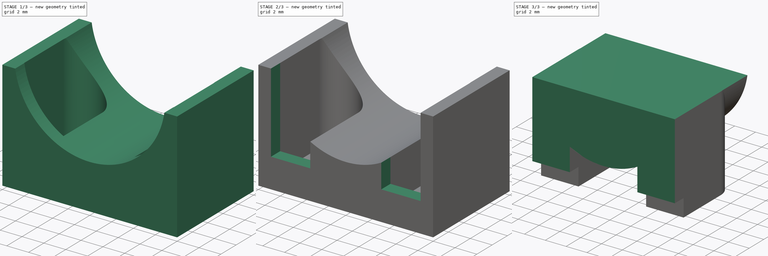
[diagram: build sequence overview — one tinted view per stage of 3, left to right]
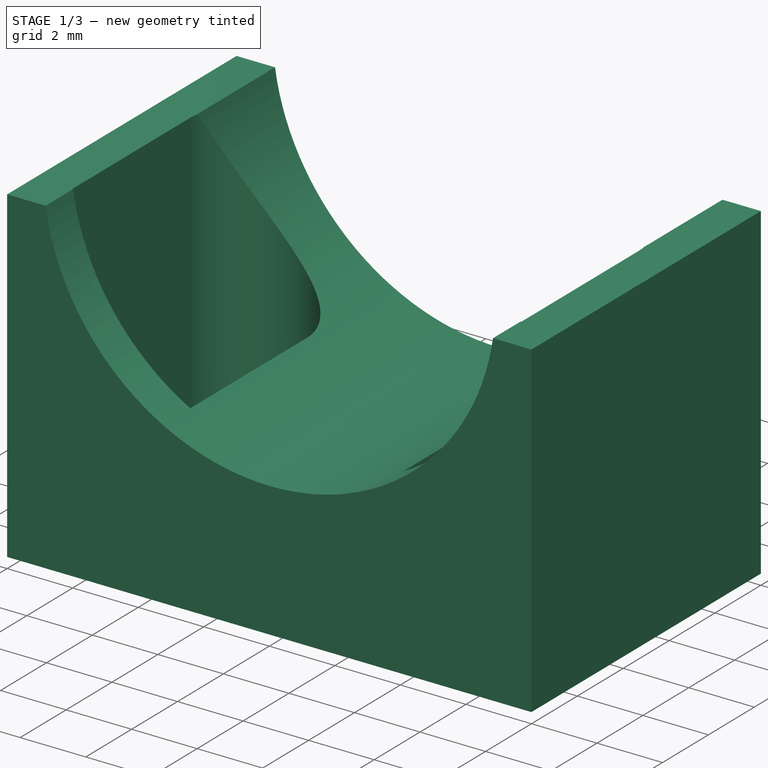
[diagram: stage 1 of 3 — iso view after this stage's code; geometry added in this stage tinted green]
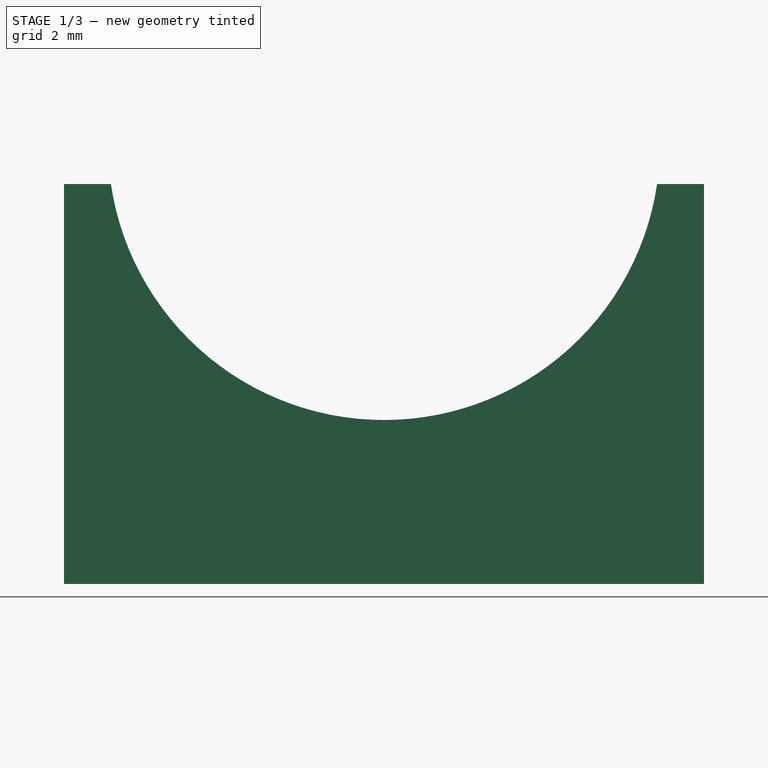
[diagram: stage 1 of 3 — front view after this stage's code; geometry added in this stage tinted green]
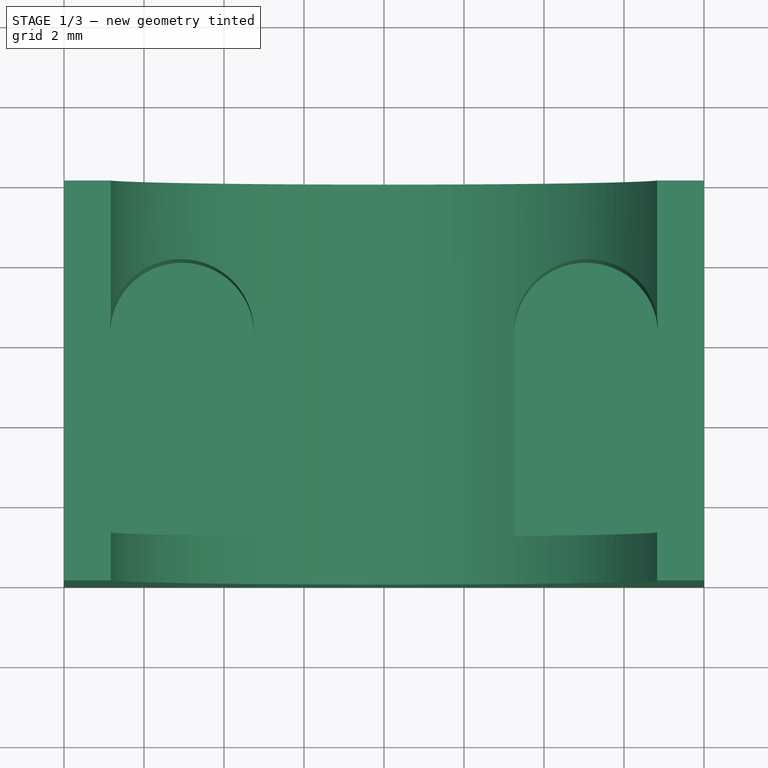
[diagram: stage 1 of 3 — top view after this stage's code; geometry added in this stage tinted green]
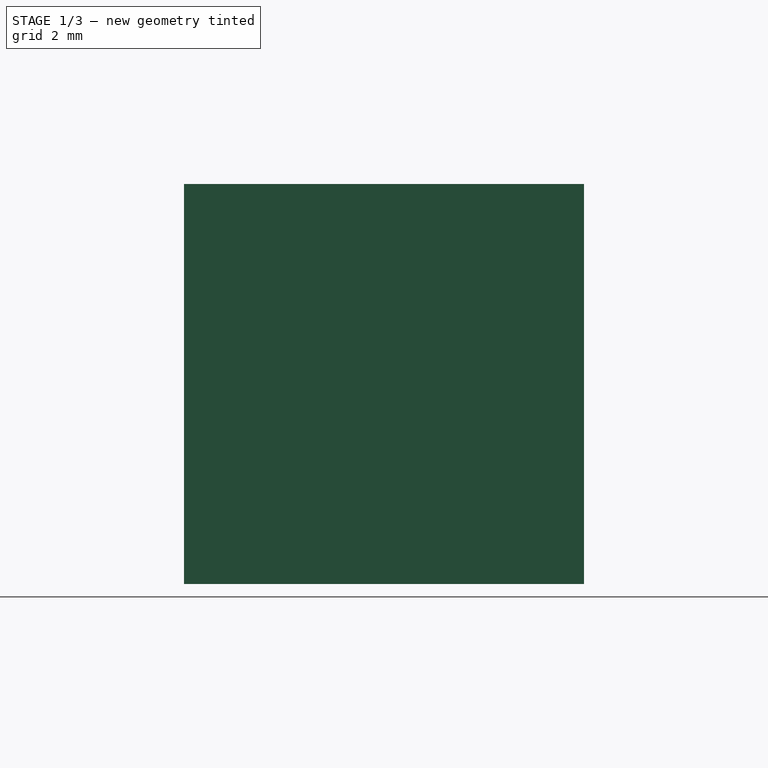
[diagram: stage 1 of 3 — right view after this stage's code; geometry added in this stage tinted green]
FCSTD DOCUMENT  (FreeCAD 0.19R23756 (Git))
Label: Schienenauflage_invertiert
License: All rights reserved
LicenseURL: http://en.wikipedia.org/wiki/All_rights_reserved
objects: Sketcher::SketchObject×4, PartDesign::Pad×2, PartDesign::Pocket×2, PartDesign::Body×2, Spreadsheet::Sheet×1, PartDesign::ShapeBinder×1, PartDesign::Boolean×1
note: 16 computed .brp shape members not serialized (recipe doc carries the construction recipe); baked Part::Feature solids carry a one-line shape summary decoded from their .brp

FEATURE [Sketcher::SketchObject] Sketch
  FullyConstrained = true
  MapMode = 5
  Placement = pos=(0,0,0) rot=(1,0,0;1.5708rad)
  Support = -> [XZ_Plane]
  expr: Constraints[15] = Spreadsheet.rt
  expr: Constraints[12] = Spreadsheet.rd
  sketch-geometry (7):
    g0: ArcOfCircle CenterX=0 CenterY=1 CenterZ=0 NormalX=0 NormalY=0 NormalZ=1 AngleXU=0 Radius=6.9 StartAngle=3.28703 EndAngle=6.13775
    g1: LineSegment StartX=-6.82715 StartY=-1e-16 StartZ=0 EndX=-8 EndY=-1e-16 EndZ=0
    g2: LineSegment StartX=-8 StartY=-1e-16 StartZ=0 EndX=-8 EndY=-10 EndZ=0
    g3: LineSegment StartX=-8 StartY=-10 StartZ=0 EndX=8 EndY=-10 EndZ=0
    g4: LineSegment StartX=8 StartY=-10 StartZ=0 EndX=8 EndY=0 EndZ=0
    g5: LineSegment StartX=8 StartY=0 StartZ=0 EndX=6.82715 EndY=0 EndZ=0
    g6: GeomPoint X=0 Y=-5.9 Z=0
  constraints (20):
    c: PointOnObject(g0,g-2)
    c: Coincident(g0,g1)
    c: Horizontal(g1)
    c: Coincident(g1,g2)
    c: Vertical(g2)
    c: Coincident(g2,g3)
    c: Horizontal(g3)
    c: Coincident(g3,g4)
    c: Vertical(g4)
    c: Coincident(g4,g5)
    c: Coincident(g5,g0)
    c: Horizontal(g5)
    c: Diameter(g0) = 13.8
    c: PointOnObject(g6,g0)
    c: PointOnObject(g6,g-2)
    c: DistanceY(g6,g0) = 5.9
    c: Symmetric(g1,g4,g-2)
    c: DistanceY(g3,g4) = 10
    c: DistanceX(g1,g4) = 16
    c: PointOnObject(g4,g-1)
FEATURE [Spreadsheet::Sheet] Spreadsheet
  cells = A1=Kugeldurchmesser; B1(d)=12.8; A2=Rinnendurchmesser; B2(rd)=13.8; A3=Rinnentiefe; B3(rt)=5.9
FEATURE [PartDesign::Pad] Pad
  Direction = (1,1,1)
  Length = 10
  Length2 = 100
  Placement = pos=(0,0,0) rot=(1,0,0;1.5708rad)
  Profile = -> Sketch
  Type = 0
FEATURE [Sketcher::SketchObject] Sketch007
  ExternalGeometry = -> [Pad]
  FullyConstrained = true
  MapMode = 5
  sketch-geometry (9):
    g0: LineSegment StartX=-6.85 StartY=-3.7 StartZ=0 EndX=-6.85 EndY=-8.8 EndZ=0
    g1: LineSegment StartX=-6.85 StartY=-8.8 StartZ=0 EndX=-3.25 EndY=-8.8 EndZ=0
    g2: LineSegment StartX=-3.25 StartY=-8.8 StartZ=0 EndX=-3.25 EndY=-3.7 EndZ=0
    g3: ArcOfCircle CenterX=-5.05 CenterY=-3.7 CenterZ=0 NormalX=0 NormalY=0 NormalZ=1 AngleXU=0 Radius=1.8 StartAngle=0 EndAngle=3.14159
    g4: LineSegment StartX=3.25 StartY=-3.7 StartZ=0 EndX=3.25 EndY=-8.8 EndZ=0
    g5: LineSegment StartX=3.25 StartY=-8.8 StartZ=0 EndX=6.85 EndY=-8.8 EndZ=0
    g6: LineSegment StartX=6.85 StartY=-8.8 StartZ=0 EndX=6.85 EndY=-3.7 EndZ=0
    g7: ArcOfCircle CenterX=5.05 CenterY=-3.7 CenterZ=0 NormalX=0 NormalY=0 NormalZ=1 AngleXU=0 Radius=1.8 StartAngle=5.09e-14 EndAngle=3.14159
    g8: GeomPoint X=5.05 Y=-1.9 Z=0
  constraints (23):
    c: Vertical(g0)
    c: Coincident(g0,g1)
    c: Horizontal(g1)
    c: Coincident(g1,g2)
    c: Vertical(g2)
    c: Tangent(g2,g3) = -1.5708
    c: Tangent(g3,g0) = -1.5708
    c: Vertical(g4)
    c: Coincident(g4,g5)
    c: Horizontal(g5)
    c: Coincident(g5,g6)
    c: Vertical(g6)
    c: Tangent(g6,g7) = -1.5708
    c: Tangent(g7,g4) = -1.5708
    c: Horizontal(g1,g4)
    c: Equal(g3,g7)
    c: DistanceX(g0,g5) = 13.7
    c: DistanceX(g1,g4) = 6.5
    c: PointOnObject(g8,g7)
    c: Vertical(g8,g7)
    c: DistanceY(g5,g8) = 6.9
    c: Symmetric(g7,g3,g-2)
    c: DistanceY(g-3,g5) = 1.2
FEATURE [PartDesign::Pocket] Pocket
  BaseFeature = -> Pad
  Length = 9
  Length2 = 100
  Placement = pos=(0,0,0) rot=(1,0,0;1.5708rad)
  Profile = -> Sketch007
  Type = 0
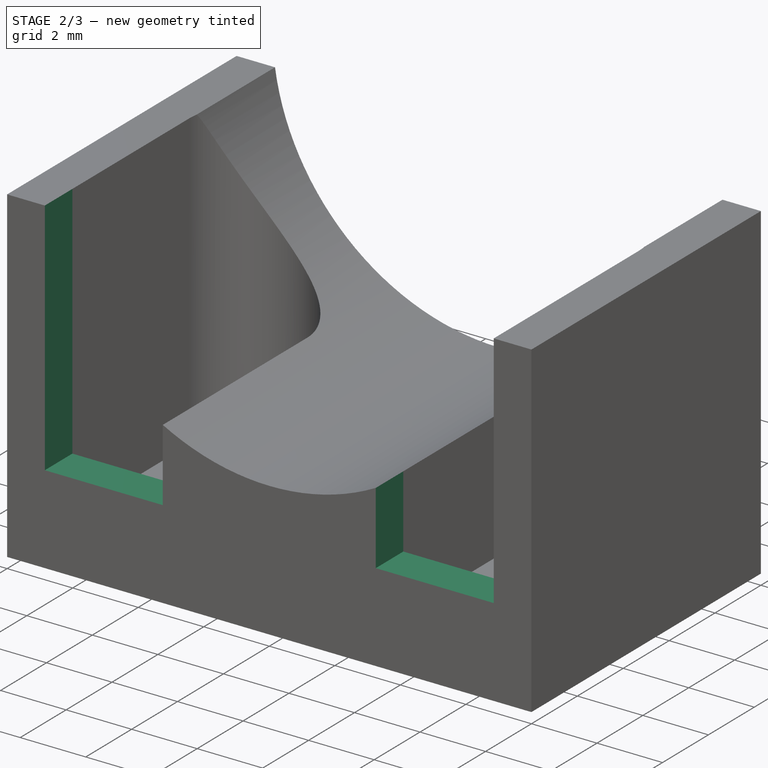
[diagram: stage 2 of 3 — iso view after this stage's code; geometry added in this stage tinted green]
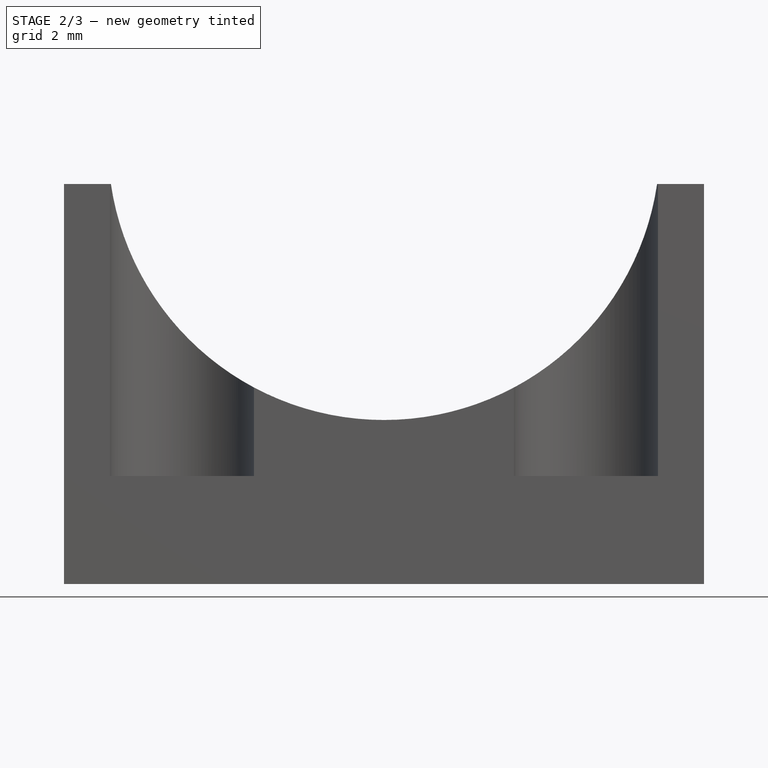
[diagram: stage 2 of 3 — front view after this stage's code; geometry added in this stage tinted green]
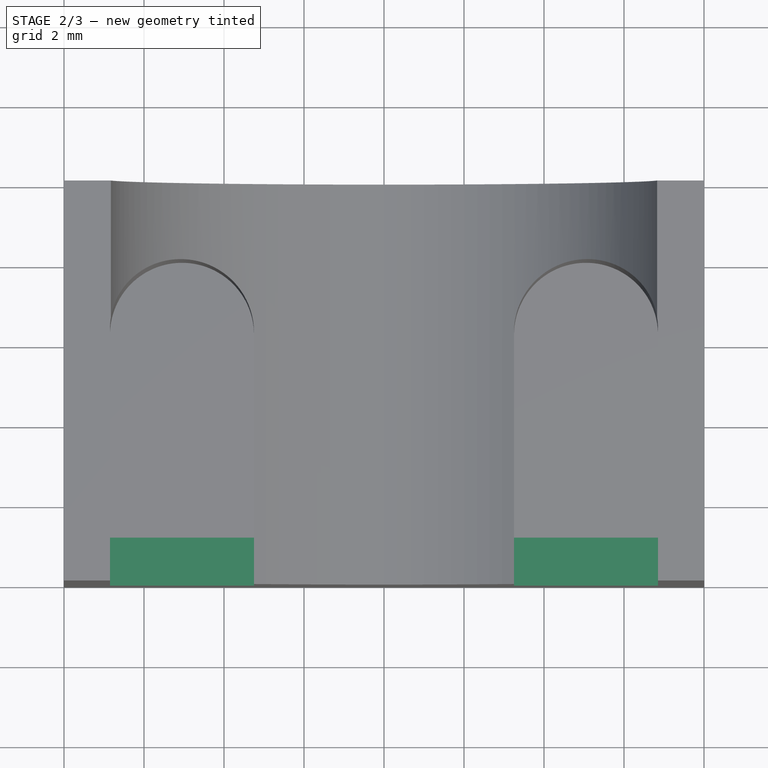
[diagram: stage 2 of 3 — top view after this stage's code; geometry added in this stage tinted green]
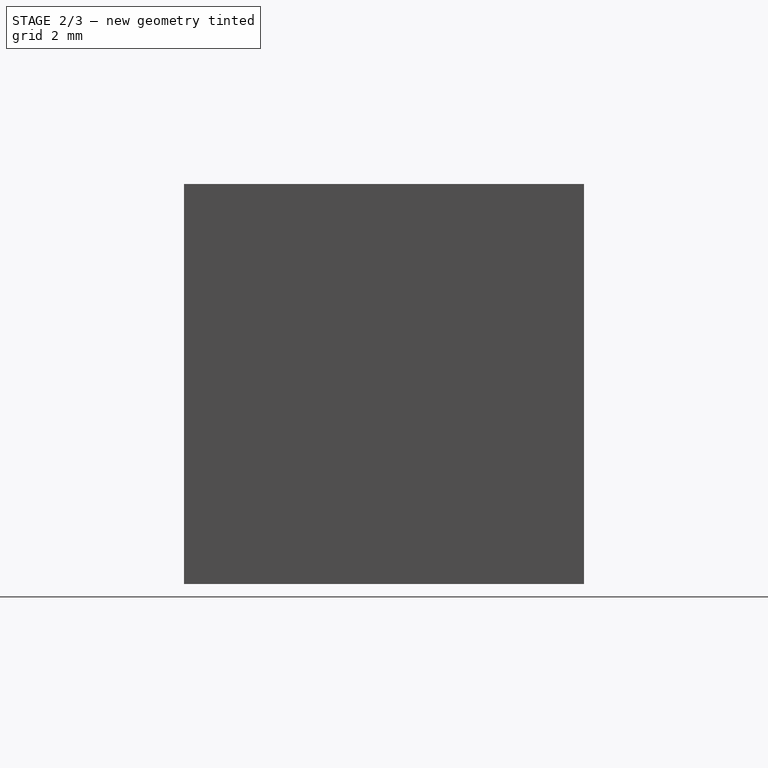
[diagram: stage 2 of 3 — right view after this stage's code; geometry added in this stage tinted green]
FEATURE [Sketcher::SketchObject] Sketch008
  ExternalGeometry = -> [Pocket]
  FullyConstrained = true
  MapMode = 5
  Placement = pos=(0,-10,0) rot=(1,0,0;1.5708rad)
  Support = -> [Pocket]
  sketch-geometry (8):
    g0: LineSegment StartX=-6.85 StartY=-4.2e-15 StartZ=0 EndX=-6.85 EndY=-7.3 EndZ=0
    g1: LineSegment StartX=-6.85 StartY=-7.3 StartZ=0 EndX=-3.25 EndY=-7.3 EndZ=0
    g2: LineSegment StartX=-3.25 StartY=-7.3 StartZ=0 EndX=-3.25 EndY=-2 EndZ=0
    g3: LineSegment StartX=-3.25 StartY=-2 StartZ=0 EndX=3.25 EndY=-2 EndZ=0
    g4: LineSegment StartX=3.25 StartY=-2 StartZ=0 EndX=3.25 EndY=-7.3 EndZ=0
    g5: LineSegment StartX=3.25 StartY=-7.3 StartZ=0 EndX=6.85 EndY=-7.3 EndZ=0
    g6: LineSegment StartX=6.85 StartY=-7.3 StartZ=0 EndX=6.85 EndY=-4.4e-15 EndZ=0
    g7: LineSegment StartX=6.85 StartY=-4.4e-15 StartZ=0 EndX=-6.85 EndY=-4.2e-15 EndZ=0
  constraints (21):
    c: Coincident(g0,g-3)
    c: Vertical(g0)
    c: Coincident(g0,g1)
    c: Horizontal(g1)
    c: Coincident(g1,g2)
    c: Vertical(g2)
    c: Coincident(g2,g3)
    c: Horizontal(g3)
    c: Coincident(g3,g4)
    c: Vertical(g4)
    c: Coincident(g4,g5)
    c: Coincident(g5,g6)
    c: Coincident(g6,g-4)
    c: Coincident(g6,g7)
    c: Coincident(g7,g0)
    c: Vertical(g6)
    c: Horizontal(g5)
    c: Symmetric(g4,g1,g-2)
    c: PointOnObject(g4,g-5)
    c: DistanceY(g5,g6) = 7.3
    c: DistanceY(g3,g6) = 2
FEATURE [PartDesign::Pocket] Pocket001
  BaseFeature = -> Pocket
  Length = 1.2
  Length2 = 100
  Placement = pos=(0,0,0) rot=(1,0,0;1.5708rad)
  Profile = -> Sketch008
  Type = 0
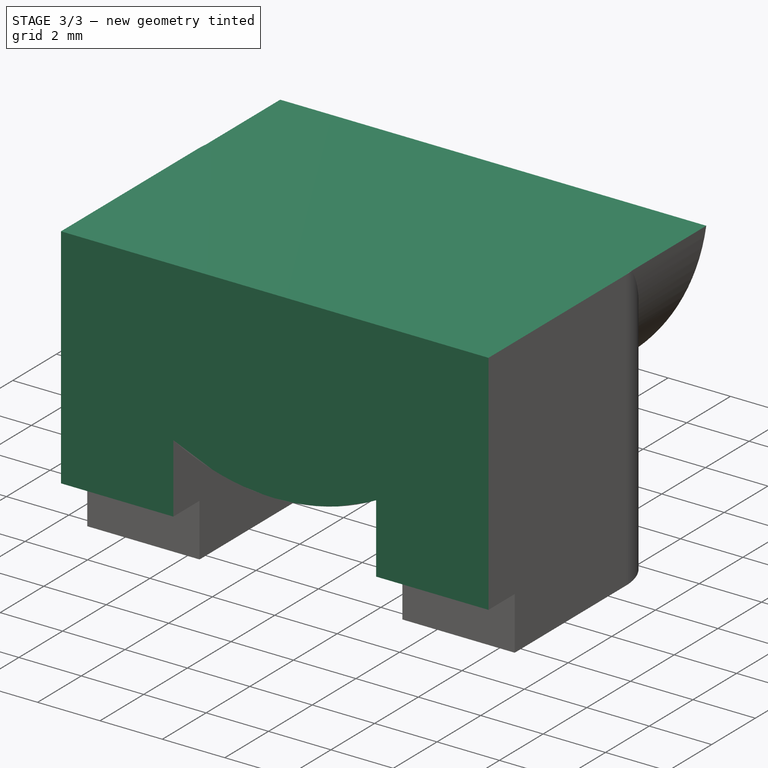
[diagram: stage 3 of 3 — iso view after this stage's code; geometry added in this stage tinted green]
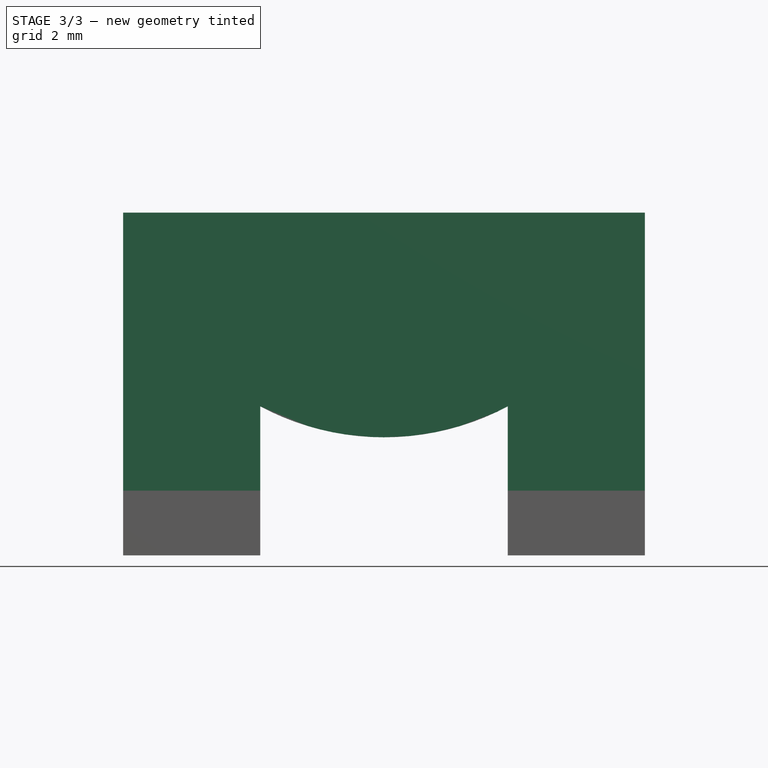
[diagram: stage 3 of 3 — front view after this stage's code; geometry added in this stage tinted green]
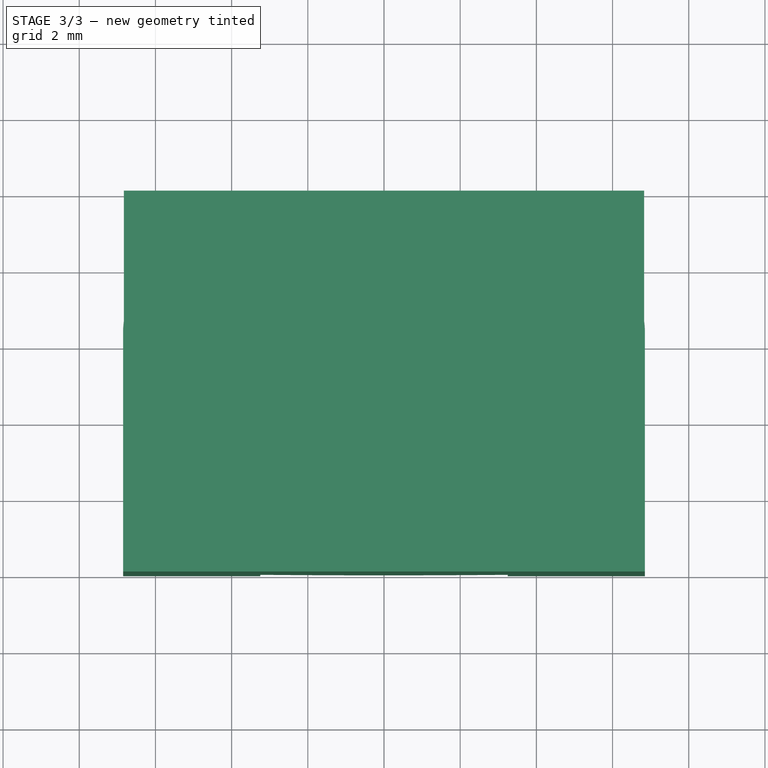
[diagram: stage 3 of 3 — top view after this stage's code; geometry added in this stage tinted green]
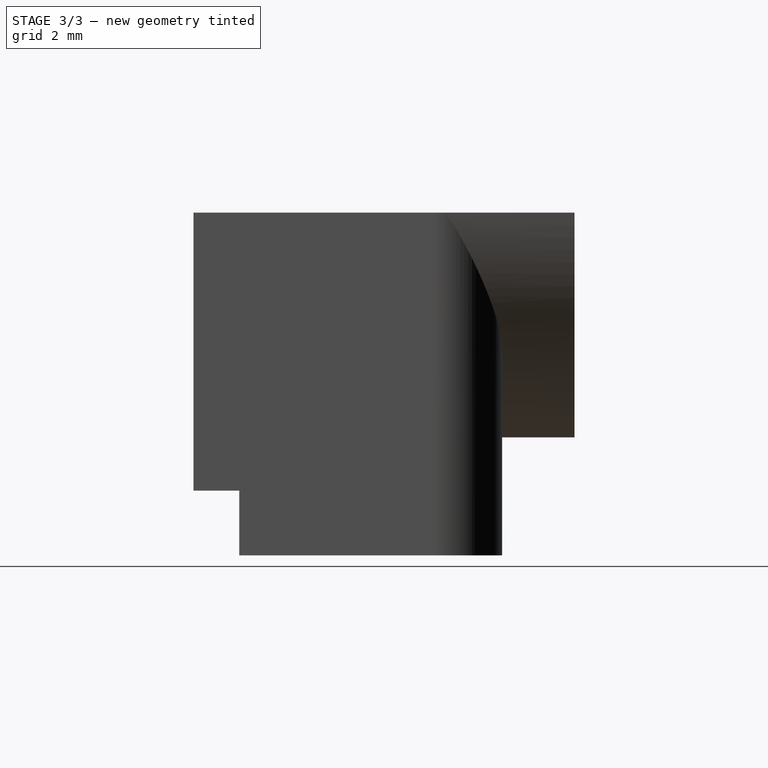
[diagram: stage 3 of 3 — right view after this stage's code; geometry added in this stage tinted green]
FEATURE [PartDesign::Body] Body  label="Schienenauflage"
  Group = -> [Sketch,Pad,Sketch007,Pocket,Sketch008,Pocket001]
  Origin = -> Origin
  Tip = -> Pocket001
FEATURE [PartDesign::ShapeBinder] ShapeBinder
  Placement = pos=(0,0,0) rot=(1,0,0;1.5708rad)
  Support = -> [Pocket001]
  TraceSupport = false
FEATURE [Sketcher::SketchObject] Sketch009
  ExternalGeometry = -> [ShapeBinder]
  FullyConstrained = true
  MapMode = 5
  Placement = pos=(0,-10,1.1e-15) rot=(1,0,0;1.5708rad)
  Support = -> [ShapeBinder]
  sketch-geometry (4):
    g0: LineSegment StartX=-6.85 StartY=-3.6e-15 StartZ=0 EndX=6.85 EndY=-3.6e-15 EndZ=0
    g1: LineSegment StartX=6.85 StartY=-3.6e-15 StartZ=0 EndX=6.85 EndY=-10 EndZ=0
    g2: LineSegment StartX=6.85 StartY=-10 StartZ=0 EndX=-6.85 EndY=-10 EndZ=0
    g3: LineSegment StartX=-6.85 StartY=-10 StartZ=0 EndX=-6.85 EndY=-3.6e-15 EndZ=0
  constraints (10):
    c: Coincident(g0,g1)
    c: Coincident(g1,g2)
    c: Coincident(g2,g3)
    c: Coincident(g3,g0)
    c: Horizontal(g2)
    c: Vertical(g1)
    c: Vertical(g3)
    c: Coincident(g0,g-3)
    c: Coincident(g-4,g0)
    c: PointOnObject(g2,g-5)
FEATURE [PartDesign::Pad] Pad001
  Direction = (1,1,1)
  Length = 10
  Length2 = 100
  Placement = pos=(0,0,0) rot=(1,0,0;1.5708rad)
  Profile = -> Sketch009
  Reversed = true
  Type = 0
FEATURE [PartDesign::Boolean] Boolean
  BaseFeature = -> Pad001
  Group = -> [Body]
  Type = 1
FEATURE [PartDesign::Body] Body001
  Group = -> [ShapeBinder,Sketch009,Pad001,Boolean]
  Origin = -> Origin001
  Tip = -> Boolean
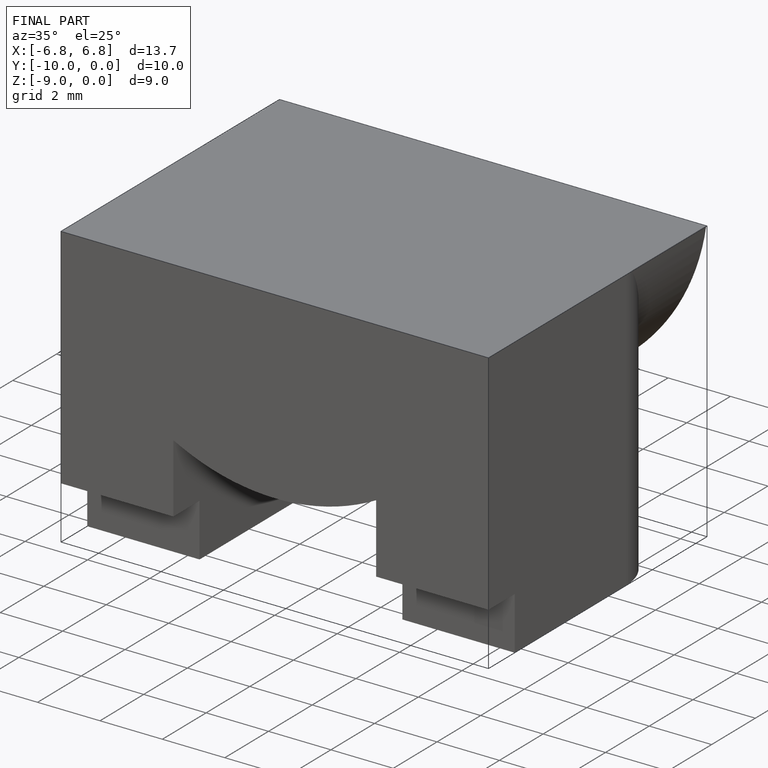
[diagram: finished part — iso view with bounding-box wireframe]
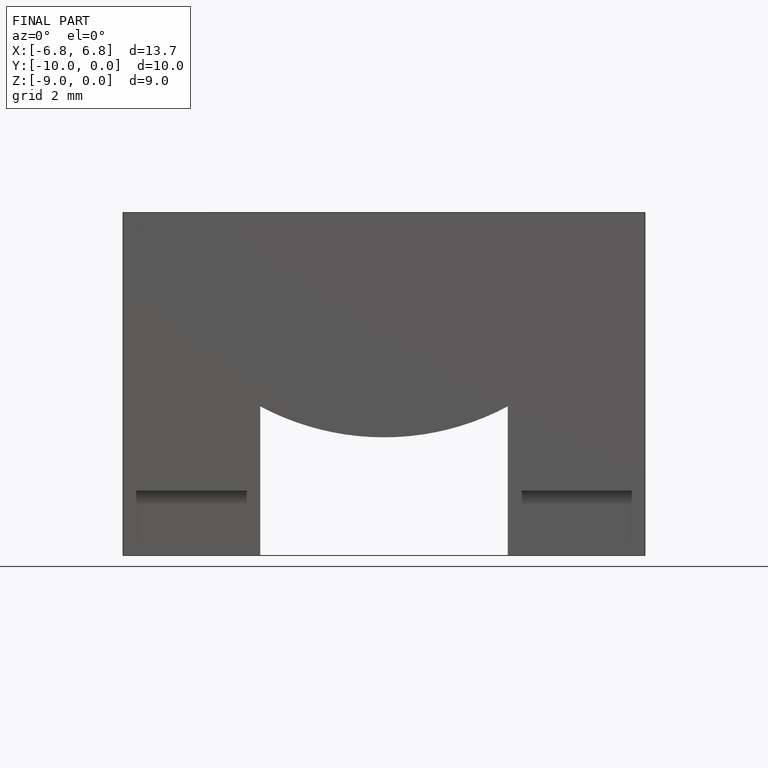
[diagram: finished part — front view with bounding-box wireframe]
